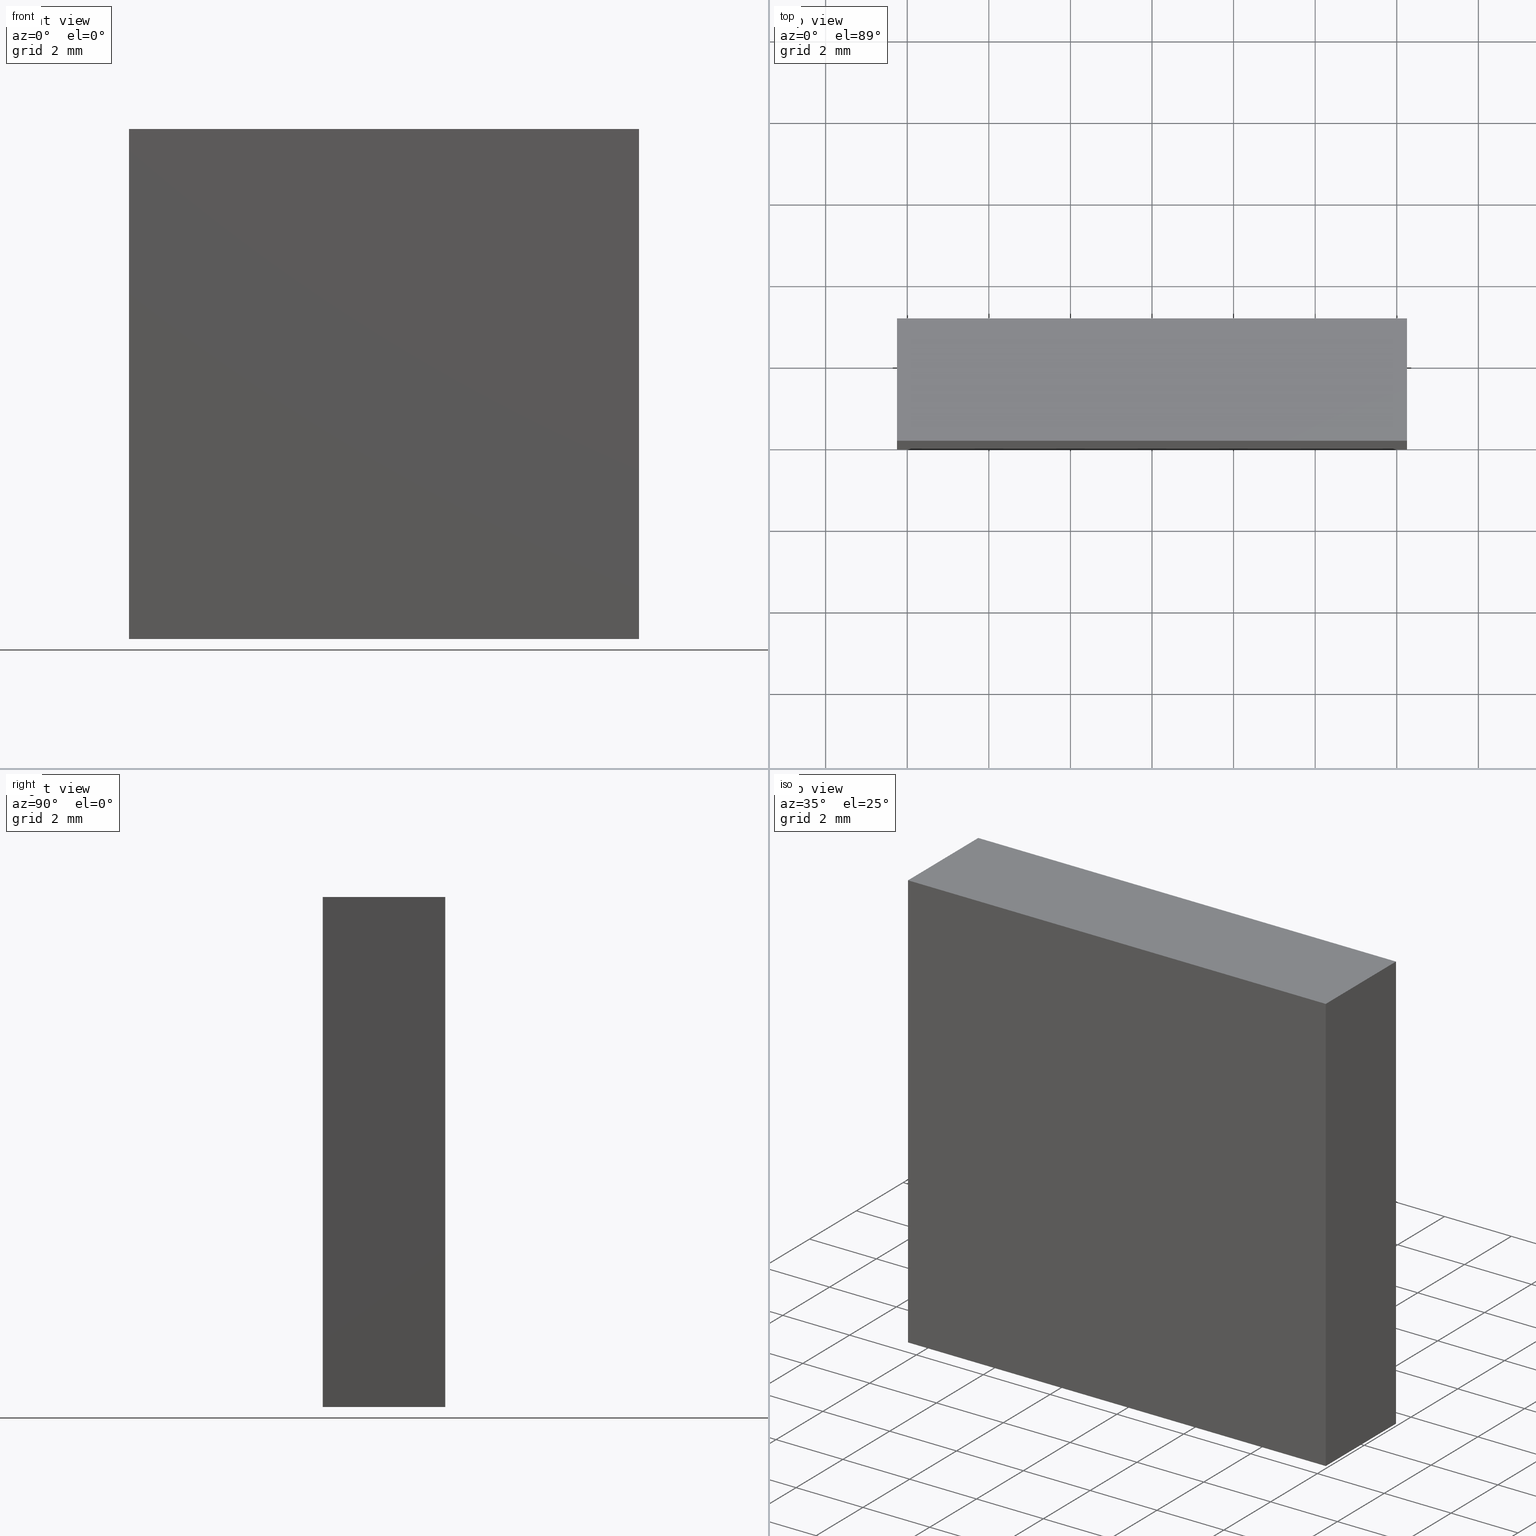
[diagram: canonical four-view strip — front | top / right | iso, engineering-drawing reading convention]
A machine part, canonical four-view strip (front | top / right | iso — engineering-drawing reading convention). The complete STEP part file that produces these views, byte-faithful:
ISO-10303-21;
HEADER;
FILE_DESCRIPTION (( 'STEP AP214' ),
    '1' );
FILE_NAME ('345501.STEP',
    '2019-08-12T02:19:38',
    ( 'user' ),
    ( '΢���й�' ),
    'SwSTEP 2.0',
    'SolidWorks 2016',
    '' );
FILE_SCHEMA (( 'AUTOMOTIVE_DESIGN' ));
ENDSEC;

DATA;
#1 = ORIENTED_EDGE ( 'NONE', *, *, #24, .F. ) ;
#2 = EDGE_CURVE ( 'NONE', #101, #79, #98, .T. ) ;
#3 = ORIENTED_EDGE ( 'NONE', *, *, #174, .T. ) ;
#4 = SURFACE_STYLE_FILL_AREA ( #8 ) ;
#5 = LINE ( 'NONE', #94, #185 ) ;
#6 = AXIS2_PLACEMENT_3D ( 'NONE', #10, #108, #197 ) ;
#7 = EDGE_LOOP ( 'NONE', ( #171, #1, #189, #92 ) ) ;
#8 = FILL_AREA_STYLE ('',( #120 ) ) ;
#9 = FILL_AREA_STYLE ('',( #126 ) ) ;
#10 = CARTESIAN_POINT ( 'NONE',  ( 0.0000000000000000000, 3.000000000000000000, 0.0000000000000000000 ) ) ;
#11 = EDGE_CURVE ( 'NONE', #13, #104, #96, .T. ) ;
#12 = CARTESIAN_POINT ( 'NONE',  ( 0.0000000000000000000, 0.0000000000000000000, 0.0000000000000000000 ) ) ;
#13 = VERTEX_POINT ( 'NONE', #34 ) ;
#14 = DIRECTION ( 'NONE',  ( 1.000000000000000000, 0.0000000000000000000, 0.0000000000000000000 ) ) ;
#15 = VECTOR ( 'NONE', #32, 1000.000000000000000 ) ;
#16 = ADVANCED_FACE ( 'NONE', ( #23 ), #75, .F. ) ;
#17 = STYLED_ITEM ( 'NONE', ( #62 ), #162 ) ;
#18 = VECTOR ( 'NONE', #14, 1000.000000000000000 ) ;
#19 = PRODUCT_DEFINITION_CONTEXT ( 'detailed design', #137, 'design' ) ;
#20 = EDGE_CURVE ( 'NONE', #79, #114, #150, .T. ) ;
#21 = LINE ( 'NONE', #122, #31 ) ;
#22 = SHAPE_DEFINITION_REPRESENTATION ( #138, #121 ) ;
#23 = FACE_OUTER_BOUND ( 'NONE', #178, .T. ) ;
#24 = EDGE_CURVE ( 'NONE', #104, #48, #5, .T. ) ;
#25 = APPLICATION_PROTOCOL_DEFINITION ( 'draft international standard', 'automotive_design', 1998, #137 ) ;
#26 = APPLICATION_CONTEXT ( 'automotive_design' ) ;
#27 = DIRECTION ( 'NONE',  ( -1.000000000000000000, 0.0000000000000000000, -0.0000000000000000000 ) ) ;
#28 = DIRECTION ( 'NONE',  ( -0.0000000000000000000, -1.000000000000000000, -0.0000000000000000000 ) ) ;
#29 = AXIS2_PLACEMENT_3D ( 'NONE', #157, #143, #30 ) ;
#30 = DIRECTION ( 'NONE',  ( -1.387778780781445400E-016, 0.0000000000000000000, -1.000000000000000000 ) ) ;
#31 = VECTOR ( 'NONE', #55, 1000.000000000000000 ) ;
#32 = DIRECTION ( 'NONE',  ( -1.000000000000000000, -0.0000000000000000000, -0.0000000000000000000 ) ) ;
#33 = PLANE ( 'NONE',  #111 ) ;
#34 = CARTESIAN_POINT ( 'NONE',  ( -6.250000000000002700, 0.0000000000000000000, -6.250000000000002700 ) ) ;
#35 = EDGE_LOOP ( 'NONE', ( #175, #133, #196, #144 ) ) ;
#36 = EDGE_CURVE ( 'NONE', #114, #48, #158, .T. ) ;
#37 = LINE ( 'NONE', #124, #65 ) ;
#38 = ORIENTED_EDGE ( 'NONE', *, *, #190, .T. ) ;
#39 = PRESENTATION_LAYER_ASSIGNMENT (  '', '', ( #17 ) ) ;
#40 = PRODUCT_CONTEXT ( 'NONE', #26, 'mechanical' ) ;
#41 = APPLICATION_PROTOCOL_DEFINITION ( 'draft international standard', 'automotive_design', 1998, #26 ) ;
#42 = PLANE ( 'NONE',  #89 ) ;
#43 = CARTESIAN_POINT ( 'NONE',  ( -6.250000000000002700, 3.000000000000000000, -6.250000000000002700 ) ) ;
#44 = VECTOR ( 'NONE', #146, 1000.000000000000000 ) ;
#45 = DIRECTION ( 'NONE',  ( 0.0000000000000000000, 0.0000000000000000000, 1.000000000000000000 ) ) ;
#46 = ORIENTED_EDGE ( 'NONE', *, *, #202, .T. ) ;
#47 = PLANE ( 'NONE',  #83 ) ;
#48 = VERTEX_POINT ( 'NONE', #170 ) ;
#49 = MECHANICAL_DESIGN_GEOMETRIC_PRESENTATION_REPRESENTATION (  '', ( #17 ), #56 ) ;
#50 = ORIENTED_EDGE ( 'NONE', *, *, #154, .F. ) ;
#51 = ORIENTED_EDGE ( 'NONE', *, *, #165, .F. ) ;
#52 = DIRECTION ( 'NONE',  ( 0.0000000000000000000, 0.0000000000000000000, 1.000000000000000000 ) ) ;
#53 =( NAMED_UNIT ( * ) SI_UNIT ( $, .STERADIAN. ) SOLID_ANGLE_UNIT ( ) );
#54 = COLOUR_RGB ( '',1.000000000000000000, 1.000000000000000000, 1.000000000000000000 ) ;
#55 = DIRECTION ( 'NONE',  ( -1.000000000000000000, -0.0000000000000000000, -0.0000000000000000000 ) ) ;
#56 =( GEOMETRIC_REPRESENTATION_CONTEXT ( 3 ) GLOBAL_UNCERTAINTY_ASSIGNED_CONTEXT ( ( #66 ) ) GLOBAL_UNIT_ASSIGNED_CONTEXT ( ( #88, #183, #71 ) ) REPRESENTATION_CONTEXT ( 'NONE', 'WORKASPACE' ) );
#57 = CARTESIAN_POINT ( 'NONE',  ( 6.249999999999997300, 3.000000000000000000, -6.250000000000002700 ) ) ;
#58 = CARTESIAN_POINT ( 'NONE',  ( 6.249999999999999100, 3.000000000000000000, 6.249999999999997300 ) ) ;
#59 = ORIENTED_EDGE ( 'NONE', *, *, #202, .F. ) ;
#60 = CARTESIAN_POINT ( 'NONE',  ( -6.250000000000000900, 3.000000000000000000, 6.249999999999997300 ) ) ;
#61 = DIRECTION ( 'NONE',  ( 1.387778780781445400E-016, 0.0000000000000000000, 1.000000000000000000 ) ) ;
#62 = PRESENTATION_STYLE_ASSIGNMENT (( #195 ) ) ;
#63 = VECTOR ( 'NONE', #112, 1000.000000000000000 ) ;
#64 = AXIS2_PLACEMENT_3D ( 'NONE', #57, #172, #61 ) ;
#65 = VECTOR ( 'NONE', #28, 1000.000000000000000 ) ;
#66 = UNCERTAINTY_MEASURE_WITH_UNIT (LENGTH_MEASURE( 1.000000000000000100E-005 ), #88, 'distance_accuracy_value', 'NONE');
#67 = ORIENTED_EDGE ( 'NONE', *, *, #186, .F. ) ;
#68 =( NAMED_UNIT ( * ) SI_UNIT ( $, .STERADIAN. ) SOLID_ANGLE_UNIT ( ) );
#69 = VECTOR ( 'NONE', #86, 1000.000000000000000 ) ;
#70 =( NAMED_UNIT ( * ) PLANE_ANGLE_UNIT ( ) SI_UNIT ( $, .RADIAN. ) );
#71 =( NAMED_UNIT ( * ) SI_UNIT ( $, .STERADIAN. ) SOLID_ANGLE_UNIT ( ) );
#72 = ORIENTED_EDGE ( 'NONE', *, *, #11, .T. ) ;
#73 = CARTESIAN_POINT ( 'NONE',  ( -6.250000000000002700, 3.000000000000000000, -6.250000000000002700 ) ) ;
#74 = CARTESIAN_POINT ( 'NONE',  ( -6.250000000000002700, 3.000000000000000000, -6.250000000000002700 ) ) ;
#75 = PLANE ( 'NONE',  #64 ) ;
#76 = ADVANCED_FACE ( 'NONE', ( #113 ), #47, .F. ) ;
#77 = ORIENTED_EDGE ( 'NONE', *, *, #2, .T. ) ;
#78 =( GEOMETRIC_REPRESENTATION_CONTEXT ( 3 ) GLOBAL_UNCERTAINTY_ASSIGNED_CONTEXT ( ( #80 ) ) GLOBAL_UNIT_ASSIGNED_CONTEXT ( ( #180, #70, #53 ) ) REPRESENTATION_CONTEXT ( 'NONE', 'WORKASPACE' ) );
#79 = VERTEX_POINT ( 'NONE', #60 ) ;
#80 = UNCERTAINTY_MEASURE_WITH_UNIT (LENGTH_MEASURE( 1.000000000000000100E-005 ), #180, 'distance_accuracy_value', 'NONE');
#81 = VECTOR ( 'NONE', #142, 1000.000000000000000 ) ;
#82 = EDGE_LOOP ( 'NONE', ( #123, #67, #135, #152 ) ) ;
#83 = AXIS2_PLACEMENT_3D ( 'NONE', #74, #45, #145 ) ;
#84 = ORIENTED_EDGE ( 'NONE', *, *, #36, .T. ) ;
#85 =( LENGTH_UNIT ( ) NAMED_UNIT ( * ) SI_UNIT ( .MILLI., .METRE. ) );
#86 = DIRECTION ( 'NONE',  ( -1.387778780781445700E-016, -0.0000000000000000000, -1.000000000000000000 ) ) ;
#87 = PRODUCT ( '345501', '345501', '', ( #40 ) ) ;
#88 =( LENGTH_UNIT ( ) NAMED_UNIT ( * ) SI_UNIT ( .MILLI., .METRE. ) );
#89 = AXIS2_PLACEMENT_3D ( 'NONE', #182, #139, #27 ) ;
#90 = DIRECTION ( 'NONE',  ( -0.0000000000000000000, -1.000000000000000000, -0.0000000000000000000 ) ) ;
#91 = DIRECTION ( 'NONE',  ( 0.0000000000000000000, -0.0000000000000000000, 1.000000000000000000 ) ) ;
#92 = ORIENTED_EDGE ( 'NONE', *, *, #131, .F. ) ;
#93 = DIRECTION ( 'NONE',  ( -0.0000000000000000000, -1.000000000000000000, -0.0000000000000000000 ) ) ;
#94 = CARTESIAN_POINT ( 'NONE',  ( -6.250000000000000900, 0.0000000000000000000, 6.249999999999997300 ) ) ;
#95 = ADVANCED_FACE ( 'NONE', ( #176 ), #33, .F. ) ;
#96 = LINE ( 'NONE', #200, #63 ) ;
#97 = VERTEX_POINT ( 'NONE', #110 ) ;
#98 = LINE ( 'NONE', #130, #44 ) ;
#99 = COLOUR_RGB ( '',1.000000000000000000, 1.000000000000000000, 1.000000000000000000 ) ;
#100 = LINE ( 'NONE', #43, #117 ) ;
#101 = VERTEX_POINT ( 'NONE', #73 ) ;
#102 = AXIS2_PLACEMENT_3D ( 'NONE', #155, #52, #153 ) ;
#103 = SURFACE_SIDE_STYLE ('',( #4 ) ) ;
#104 = VERTEX_POINT ( 'NONE', #169 ) ;
#105 = SURFACE_STYLE_FILL_AREA ( #9 ) ;
#106 = CARTESIAN_POINT ( 'NONE',  ( 6.249999999999997300, 0.0000000000000000000, -6.250000000000002700 ) ) ;
#107 = SURFACE_SIDE_STYLE ('',( #105 ) ) ;
#108 = DIRECTION ( 'NONE',  ( 0.0000000000000000000, 1.000000000000000000, 0.0000000000000000000 ) ) ;
#109 = EDGE_LOOP ( 'NONE', ( #46, #3, #77, #188 ) ) ;
#110 = CARTESIAN_POINT ( 'NONE',  ( 6.249999999999997300, 0.0000000000000000000, -6.250000000000002700 ) ) ;
#111 = AXIS2_PLACEMENT_3D ( 'NONE', #12, #198, #91 ) ;
#112 = DIRECTION ( 'NONE',  ( 1.387778780781445700E-016, 0.0000000000000000000, 1.000000000000000000 ) ) ;
#113 = FACE_OUTER_BOUND ( 'NONE', #82, .T. ) ;
#114 = VERTEX_POINT ( 'NONE', #58 ) ;
#115 = STYLED_ITEM ( 'NONE', ( #118 ), #121 ) ;
#116 = PRODUCT_DEFINITION ( 'δ֪', '', #128, #19 ) ;
#117 = VECTOR ( 'NONE', #194, 1000.000000000000000 ) ;
#118 = PRESENTATION_STYLE_ASSIGNMENT (( #192 ) ) ;
#119 = ORIENTED_EDGE ( 'NONE', *, *, #186, .T. ) ;
#120 = FILL_AREA_STYLE_COLOUR ( '', #99 ) ;
#121 = ADVANCED_BREP_SHAPE_REPRESENTATION ( '345501', ( #162, #102 ), #78 ) ;
#122 = CARTESIAN_POINT ( 'NONE',  ( -6.250000000000002700, 3.000000000000000000, -6.250000000000002700 ) ) ;
#123 = ORIENTED_EDGE ( 'NONE', *, *, #131, .T. ) ;
#124 = CARTESIAN_POINT ( 'NONE',  ( 6.249999999999997300, 3.000000000000000000, -6.250000000000002700 ) ) ;
#125 = PRESENTATION_LAYER_ASSIGNMENT (  '', '', ( #115 ) ) ;
#126 = FILL_AREA_STYLE_COLOUR ( '', #54 ) ;
#127 = CARTESIAN_POINT ( 'NONE',  ( -6.250000000000000900, 3.000000000000000000, 6.249999999999997300 ) ) ;
#128 = PRODUCT_DEFINITION_FORMATION_WITH_SPECIFIED_SOURCE ( '�κ�', '', #87, .NOT_KNOWN. ) ;
#129 = VECTOR ( 'NONE', #90, 1000.000000000000000 ) ;
#130 = CARTESIAN_POINT ( 'NONE',  ( -6.250000000000002700, 3.000000000000000000, -6.250000000000002700 ) ) ;
#131 = EDGE_CURVE ( 'NONE', #97, #13, #147, .T. ) ;
#132 = LINE ( 'NONE', #184, #129 ) ;
#133 = ORIENTED_EDGE ( 'NONE', *, *, #36, .F. ) ;
#134 = MECHANICAL_DESIGN_GEOMETRIC_PRESENTATION_REPRESENTATION (  '', ( #115 ), #149 ) ;
#135 = ORIENTED_EDGE ( 'NONE', *, *, #174, .F. ) ;
#136 = PRODUCT_RELATED_PRODUCT_CATEGORY ( 'part', '', ( #87 ) ) ;
#137 = APPLICATION_CONTEXT ( 'automotive_design' ) ;
#138 = PRODUCT_DEFINITION_SHAPE ( 'NONE', 'NONE',  #116 ) ;
#139 = DIRECTION ( 'NONE',  ( 0.0000000000000000000, 0.0000000000000000000, -1.000000000000000000 ) ) ;
#140 = EDGE_LOOP ( 'NONE', ( #72, #50, #151, #119 ) ) ;
#141 = FACE_OUTER_BOUND ( 'NONE', #109, .T. ) ;
#142 = DIRECTION ( 'NONE',  ( -1.387778780781445700E-016, -0.0000000000000000000, -1.000000000000000000 ) ) ;
#143 = DIRECTION ( 'NONE',  ( 1.000000000000000000, 0.0000000000000000000, -1.387778780781445400E-016 ) ) ;
#144 = ORIENTED_EDGE ( 'NONE', *, *, #154, .T. ) ;
#145 = DIRECTION ( 'NONE',  ( 1.000000000000000000, 0.0000000000000000000, -0.0000000000000000000 ) ) ;
#146 = DIRECTION ( 'NONE',  ( 1.387778780781445700E-016, 0.0000000000000000000, 1.000000000000000000 ) ) ;
#147 = LINE ( 'NONE', #159, #15 ) ;
#148 = ADVANCED_FACE ( 'NONE', ( #141 ), #187, .T. ) ;
#149 =( GEOMETRIC_REPRESENTATION_CONTEXT ( 3 ) GLOBAL_UNCERTAINTY_ASSIGNED_CONTEXT ( ( #177 ) ) GLOBAL_UNIT_ASSIGNED_CONTEXT ( ( #85, #179, #68 ) ) REPRESENTATION_CONTEXT ( 'NONE', 'WORKASPACE' ) );
#150 = LINE ( 'NONE', #127, #18 ) ;
#151 = ORIENTED_EDGE ( 'NONE', *, *, #2, .F. ) ;
#152 = ORIENTED_EDGE ( 'NONE', *, *, #165, .T. ) ;
#153 = DIRECTION ( 'NONE',  ( 1.000000000000000000, 0.0000000000000000000, 0.0000000000000000000 ) ) ;
#154 = EDGE_CURVE ( 'NONE', #79, #104, #132, .T. ) ;
#155 = CARTESIAN_POINT ( 'NONE',  ( 0.0000000000000000000, 0.0000000000000000000, 0.0000000000000000000 ) ) ;
#156 = CARTESIAN_POINT ( 'NONE',  ( 6.249999999999997300, 3.000000000000000000, -6.250000000000002700 ) ) ;
#157 = CARTESIAN_POINT ( 'NONE',  ( -6.250000000000002700, 3.000000000000000000, -6.250000000000002700 ) ) ;
#158 = LINE ( 'NONE', #160, #164 ) ;
#159 = CARTESIAN_POINT ( 'NONE',  ( -6.250000000000002700, 0.0000000000000000000, -6.250000000000002700 ) ) ;
#160 = CARTESIAN_POINT ( 'NONE',  ( 6.249999999999999100, 3.000000000000000000, 6.249999999999997300 ) ) ;
#161 = ADVANCED_FACE ( 'NONE', ( #181 ), #168, .F. ) ;
#162 = MANIFOLD_SOLID_BREP ( '͹̨-����1', #166 ) ;
#163 = VERTEX_POINT ( 'NONE', #156 ) ;
#164 = VECTOR ( 'NONE', #93, 1000.000000000000000 ) ;
#165 = EDGE_CURVE ( 'NONE', #163, #97, #37, .T. ) ;
#166 = CLOSED_SHELL ( 'NONE', ( #16, #76, #161, #201, #148, #95 ) ) ;
#167 = LINE ( 'NONE', #193, #69 ) ;
#168 = PLANE ( 'NONE',  #29 ) ;
#169 = CARTESIAN_POINT ( 'NONE',  ( -6.250000000000000900, 0.0000000000000000000, 6.249999999999997300 ) ) ;
#170 = CARTESIAN_POINT ( 'NONE',  ( 6.249999999999999100, 0.0000000000000000000, 6.249999999999997300 ) ) ;
#171 = ORIENTED_EDGE ( 'NONE', *, *, #190, .F. ) ;
#172 = DIRECTION ( 'NONE',  ( -1.000000000000000000, 0.0000000000000000000, 1.387778780781445400E-016 ) ) ;
#173 = FACE_OUTER_BOUND ( 'NONE', #35, .T. ) ;
#174 = EDGE_CURVE ( 'NONE', #163, #101, #21, .T. ) ;
#175 = ORIENTED_EDGE ( 'NONE', *, *, #24, .T. ) ;
#176 = FACE_OUTER_BOUND ( 'NONE', #7, .T. ) ;
#177 = UNCERTAINTY_MEASURE_WITH_UNIT (LENGTH_MEASURE( 1.000000000000000100E-005 ), #85, 'distance_accuracy_value', 'NONE');
#178 = EDGE_LOOP ( 'NONE', ( #38, #51, #59, #84 ) ) ;
#179 =( NAMED_UNIT ( * ) PLANE_ANGLE_UNIT ( ) SI_UNIT ( $, .RADIAN. ) );
#180 =( LENGTH_UNIT ( ) NAMED_UNIT ( * ) SI_UNIT ( .MILLI., .METRE. ) );
#181 = FACE_OUTER_BOUND ( 'NONE', #140, .T. ) ;
#182 = CARTESIAN_POINT ( 'NONE',  ( -6.250000000000000900, 3.000000000000000000, 6.249999999999997300 ) ) ;
#183 =( NAMED_UNIT ( * ) PLANE_ANGLE_UNIT ( ) SI_UNIT ( $, .RADIAN. ) );
#184 = CARTESIAN_POINT ( 'NONE',  ( -6.250000000000000900, 3.000000000000000000, 6.249999999999997300 ) ) ;
#185 = VECTOR ( 'NONE', #199, 1000.000000000000000 ) ;
#186 = EDGE_CURVE ( 'NONE', #101, #13, #100, .T. ) ;
#187 = PLANE ( 'NONE',  #6 ) ;
#188 = ORIENTED_EDGE ( 'NONE', *, *, #20, .T. ) ;
#189 = ORIENTED_EDGE ( 'NONE', *, *, #11, .F. ) ;
#190 = EDGE_CURVE ( 'NONE', #48, #97, #191, .T. ) ;
#191 = LINE ( 'NONE', #106, #81 ) ;
#192 = SURFACE_STYLE_USAGE ( .BOTH. , #103 ) ;
#193 = CARTESIAN_POINT ( 'NONE',  ( 6.249999999999997300, 3.000000000000000000, -6.250000000000002700 ) ) ;
#194 = DIRECTION ( 'NONE',  ( -0.0000000000000000000, -1.000000000000000000, -0.0000000000000000000 ) ) ;
#195 = SURFACE_STYLE_USAGE ( .BOTH. , #107 ) ;
#196 = ORIENTED_EDGE ( 'NONE', *, *, #20, .F. ) ;
#197 = DIRECTION ( 'NONE',  ( 0.0000000000000000000, -0.0000000000000000000, 1.000000000000000000 ) ) ;
#198 = DIRECTION ( 'NONE',  ( 0.0000000000000000000, 1.000000000000000000, 0.0000000000000000000 ) ) ;
#199 = DIRECTION ( 'NONE',  ( 1.000000000000000000, 0.0000000000000000000, 0.0000000000000000000 ) ) ;
#200 = CARTESIAN_POINT ( 'NONE',  ( -6.250000000000002700, 0.0000000000000000000, -6.250000000000002700 ) ) ;
#201 = ADVANCED_FACE ( 'NONE', ( #173 ), #42, .F. ) ;
#202 = EDGE_CURVE ( 'NONE', #114, #163, #167, .T. ) ;
ENDSEC;
END-ISO-10303-21;
